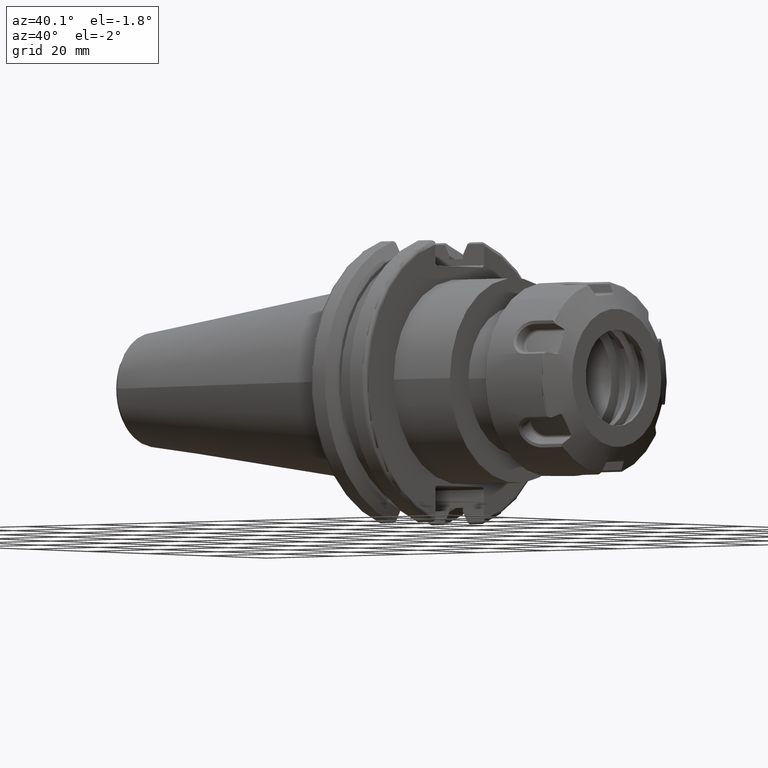
[diagram: clean part render]
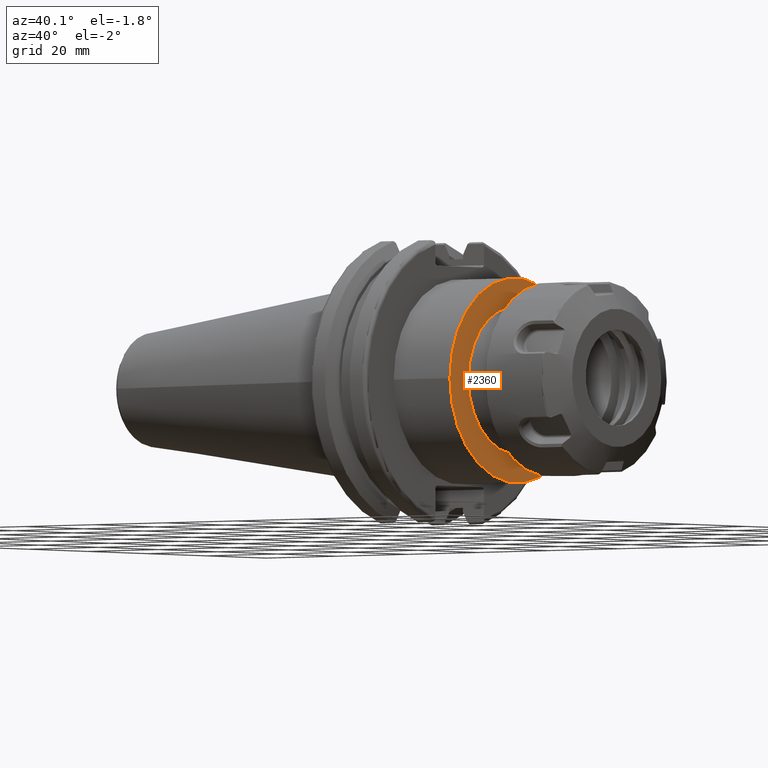
[diagram: same view with one face highlighted and labeled with its STEP entity id]
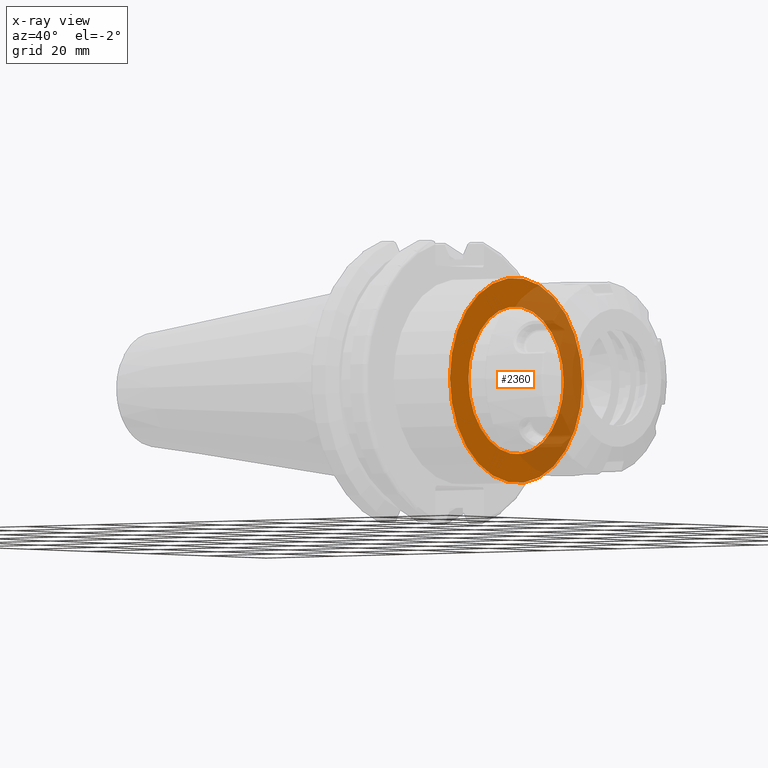
[diagram: x-ray of the same camera — body ghosted, the highlighted face saturated]
A machine part, auxiliary view. The second image highlights one B-rep face of the part: STEP entity #2360.
The next image is the same camera in x-ray: the body ghosted, the highlighted face saturated — about 43% of this face is hidden behind the body in this view.
In plain terms, the highlighted planar face has unit normal (1, 0, 0).
Its self-contained STEP definition (entity closure, byte-faithful):
#220=FACE_BOUND('',#477,.T.);
#234=PLANE('',#2583);
#335=FACE_OUTER_BOUND('',#476,.T.);
#476=EDGE_LOOP('',(#1651));
#477=EDGE_LOOP('',(#1652));
#958=CIRCLE('',#2581,22.225);
#960=CIRCLE('',#2584,16.);
#1061=VERTEX_POINT('',#3481);
#1063=VERTEX_POINT('',#3487);
#1289=EDGE_CURVE('',#1061,#1061,#958,.T.);
#1292=EDGE_CURVE('',#1063,#1063,#960,.T.);
#1651=ORIENTED_EDGE('',*,*,#1289,.T.);
#1652=ORIENTED_EDGE('',*,*,#1292,.F.);
#2360=ADVANCED_FACE('',(#335,#220),#234,.T.);
#2581=AXIS2_PLACEMENT_3D('',#3482,#2838,#2839);
#2583=AXIS2_PLACEMENT_3D('',#3486,#2843,#2844);
#2584=AXIS2_PLACEMENT_3D('',#3488,#2845,#2846);
#2838=DIRECTION('center_axis',(1.,0.,0.));
#2839=DIRECTION('ref_axis',(0.,0.,-1.));
#2843=DIRECTION('center_axis',(1.,0.,0.));
#2844=DIRECTION('ref_axis',(0.,0.,-1.));
#2845=DIRECTION('center_axis',(1.,0.,0.));
#2846=DIRECTION('ref_axis',(0.,0.,-1.));
#3481=CARTESIAN_POINT('',(35.,-22.225,-2.72177751110499E-15));
#3482=CARTESIAN_POINT('Origin',(35.,0.,0.));
#3486=CARTESIAN_POINT('Origin',(35.,16.,0.));
#3487=CARTESIAN_POINT('',(35.,-16.,-1.95943487863576E-15));
#3488=CARTESIAN_POINT('Origin',(35.,0.,0.));